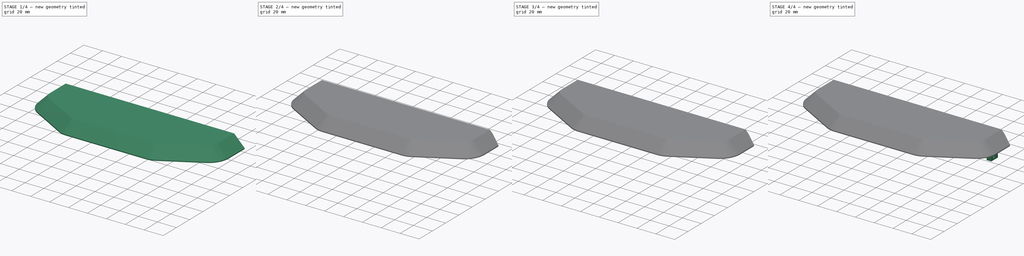
[diagram: build sequence overview — one tinted view per stage of 4, left to right]
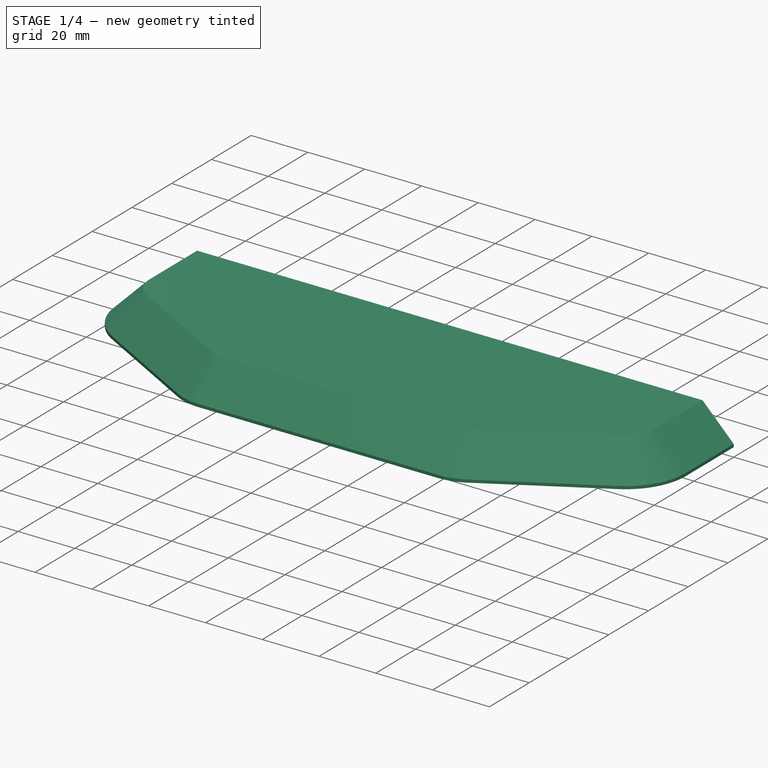
[diagram: stage 1 of 4 — iso view after this stage's code; geometry added in this stage tinted green]
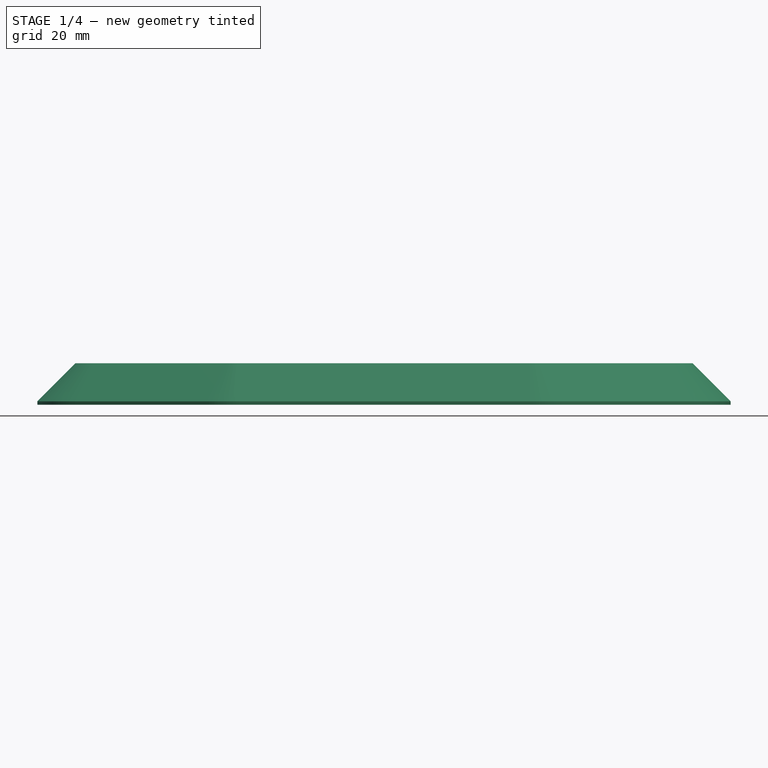
[diagram: stage 1 of 4 — front view after this stage's code; geometry added in this stage tinted green]
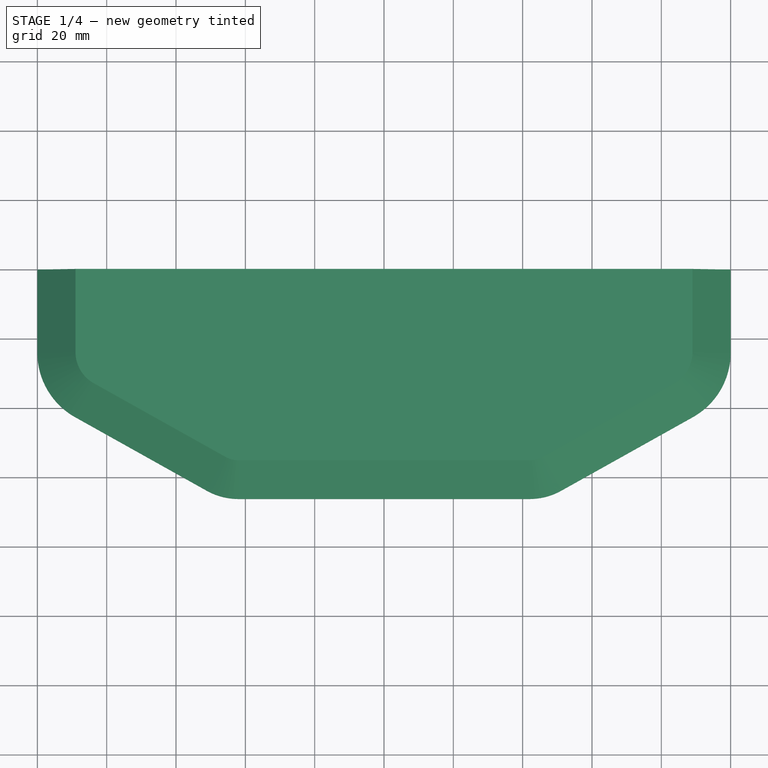
[diagram: stage 1 of 4 — top view after this stage's code; geometry added in this stage tinted green]
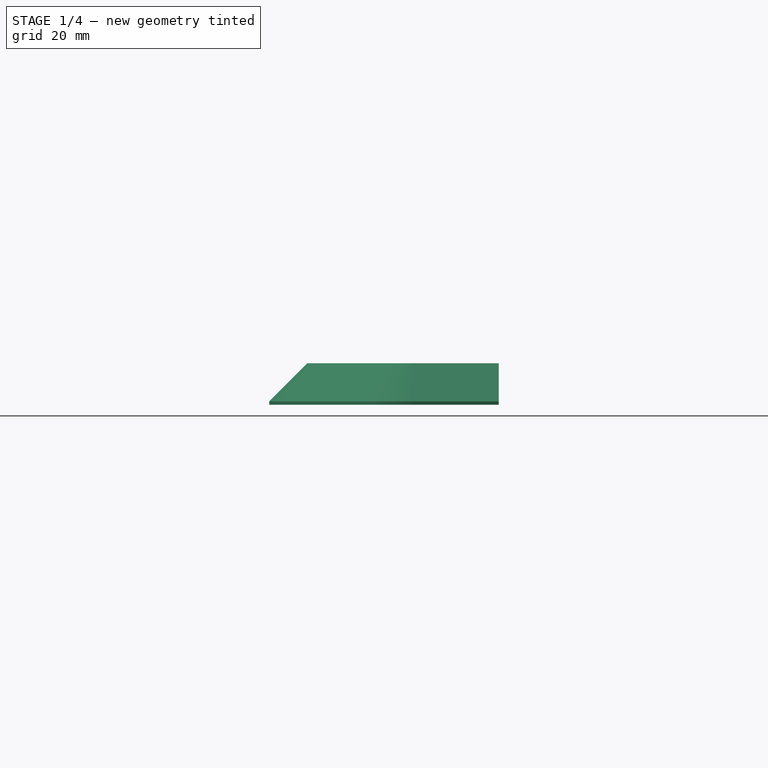
[diagram: stage 1 of 4 — right view after this stage's code; geometry added in this stage tinted green]
FCSTD DOCUMENT  (FreeCAD 0.20R)
Label: T07_front_cover
License: All rights reserved
LicenseURL: http://en.wikipedia.org/wiki/All_rights_reserved
objects: Sketcher::SketchObject×7, PartDesign::Pad×4, PartDesign::Pocket×3, PartDesign::Chamfer×2, PartDesign::Body×1
note: 26 computed .brp shape members not serialized (recipe doc carries the construction recipe); baked Part::Feature solids carry a one-line shape summary decoded from their .brp

FEATURE [Sketcher::SketchObject] Sketch062
  FullyConstrained = true
  MapMode = 5
  sketch-geometry (10):
    g0: LineSegment StartX=100 StartY=0 StartZ=0 EndX=100 EndY=-24 EndZ=0
    g1: LineSegment StartX=42 StartY=-66.2 StartZ=0 EndX=-42 EndY=-66.2 EndZ=0
    g2: LineSegment StartX=-51.25 StartY=-63.75 StartZ=0 EndX=-89.25 EndY=-42.5 EndZ=0
    g3: LineSegment StartX=-100 StartY=-24 StartZ=0 EndX=-100 EndY=0 EndZ=0
    g4: LineSegment StartX=51.25 StartY=-63.75 StartZ=0 EndX=89.25 EndY=-42.5 EndZ=0
    g5: ArcOfCircle CenterX=-78.7064 CenterY=-24 CenterZ=0 NormalX=0 NormalY=0 NormalZ=1 AngleXU=0 Radius=21.2936 StartAngle=3.14159 EndAngle=4.19438
    g6: ArcOfCircle CenterX=-42 CenterY=-47.5133 CenterZ=0 NormalX=0 NormalY=0 NormalZ=1 AngleXU=0 Radius=18.6867 StartAngle=4.19455 EndAngle=4.71239
    g7: ArcOfCircle CenterX=42 CenterY=-47.5133 CenterZ=0 NormalX=0 NormalY=0 NormalZ=1 AngleXU=0 Radius=18.6867 StartAngle=4.71239 EndAngle=5.23023
    g8: ArcOfCircle CenterX=78.7064 CenterY=-24 CenterZ=0 NormalX=0 NormalY=0 NormalZ=1 AngleXU=0 Radius=21.2936 StartAngle=5.2304 EndAngle=6.28319
    g9: LineSegment StartX=-100 StartY=0 StartZ=0 EndX=100 EndY=0 EndZ=0
  constraints (25):
    c: Vertical(g3)
    c: Symmetric(g3,g0,g-2)
    c: Symmetric(g3,g0,g-2)
    c: DistanceX(g3,g0) = 200
    c: DistanceY(g3,g3) = 24
    c: Symmetric(g1,g1,g-2)
    c: DistanceX(g1,g1) = 84
    c: DistanceY(g1,g3) = 66.2
    c: Symmetric(g2,g4,g-2)
    c: Symmetric(g2,g4,g-2)
    c: DistanceX(g2,g4) = 102.5
    c: DistanceX(g2,g4) = 178.5
    c: DistanceY(g2,g3) = 42.5
    c: DistanceY(g2,g3) = 63.75
    c: DistanceY(g3,g-1) = 0
    c: Coincident(g6,g2)
    c: Coincident(g8,g4)
    c: Coincident(g7,g4)
    c: Tangent(g5,g3) = 1.5708
    c: Tangent(g8,g0) = 1.5708
    c: Tangent(g6,g1) = 1.5708
    c: Tangent(g7,g1) = 1.5708
    c: Coincident(g5,g2)
    c: Coincident(g9,g3)
    c: Coincident(g9,g0)
FEATURE [PartDesign::Pad] Pad
  Direction = (0,0,1)
  Length = 12
  Length2 = 10
  Profile = -> Sketch062
  ReferenceAxis = -> Sketch062 [N_Axis]
  Type = 0
FEATURE [Sketcher::SketchObject] Sketch
  FullyConstrained = true
  MapMode = 5
  Placement = pos=(100,0,0) rot=(0.57735,0.57735,0.57735;2.0944rad)
  sketch-geometry (4):
    g0: LineSegment StartX=0 StartY=0 StartZ=0 EndX=0 EndY=9 EndZ=0
    g1: LineSegment StartX=0 StartY=9 StartZ=0 EndX=-6 EndY=-9 EndZ=0
    g2: LineSegment StartX=-6 StartY=-9 StartZ=0 EndX=0 EndY=-9 EndZ=0
    g3: LineSegment StartX=0 StartY=-9 StartZ=0 EndX=0 EndY=0 EndZ=0
  constraints (11):
    c: PointOnObject(g0,g-2)
    c: Coincident(g0,g1)
    c: DistanceX(g1,g-1) = 6
    c: DistanceY(g0,g0) = 9
    c: DistanceY(g1,g-1) = 9
    c: Coincident(g1,g2)
    c: PointOnObject(g2,g-2)
    c: Horizontal(g2)
    c: Coincident(g2,g3)
    c: Coincident(g3,g0)
    c: Coincident(g0,g-1)
FEATURE [PartDesign::Chamfer] Chamfer
  Angle = 45
  Base = -> Pad [Edge10,Edge13,Edge16,Edge19,Edge22,Edge25,Edge28,Edge30,Edge4]
  BaseFeature = -> Pad
  ChamferType = 0
  FlipDirection = false
  Size = 11
  Size2 = 1
  SupportTransform = false
  UseAllEdges = false
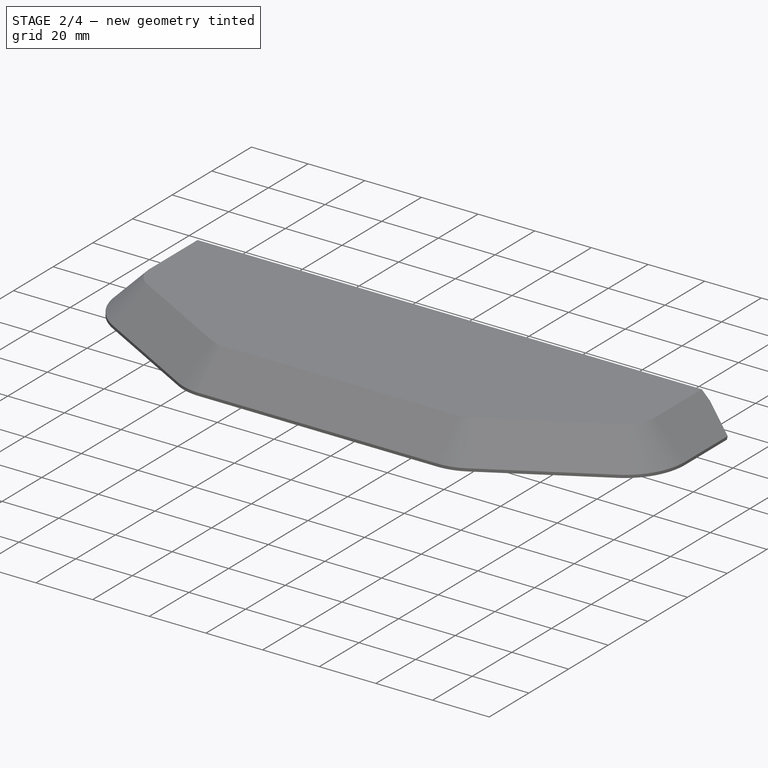
[diagram: stage 2 of 4 — iso view after this stage's code; geometry added in this stage tinted green]
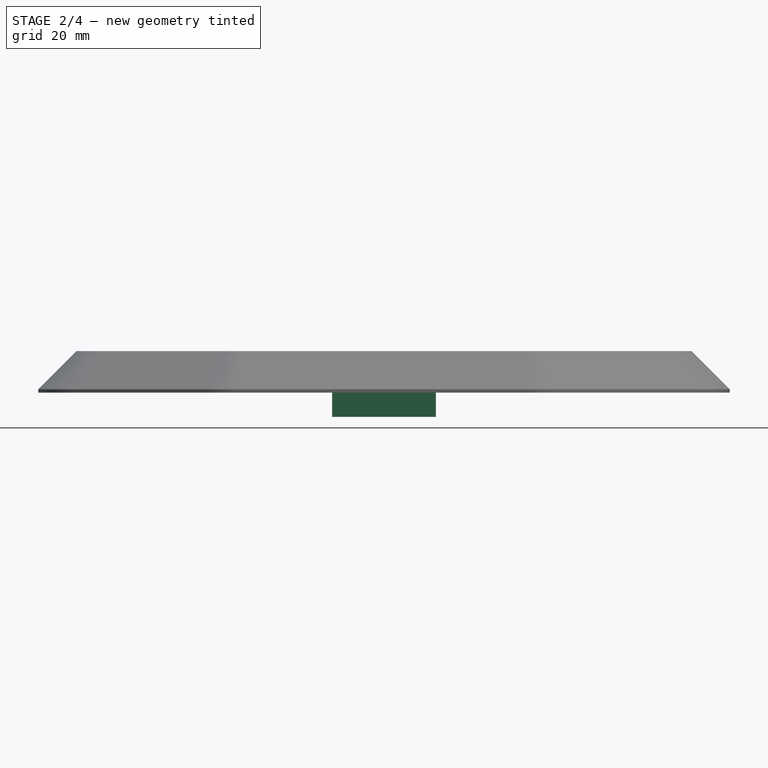
[diagram: stage 2 of 4 — front view after this stage's code; geometry added in this stage tinted green]
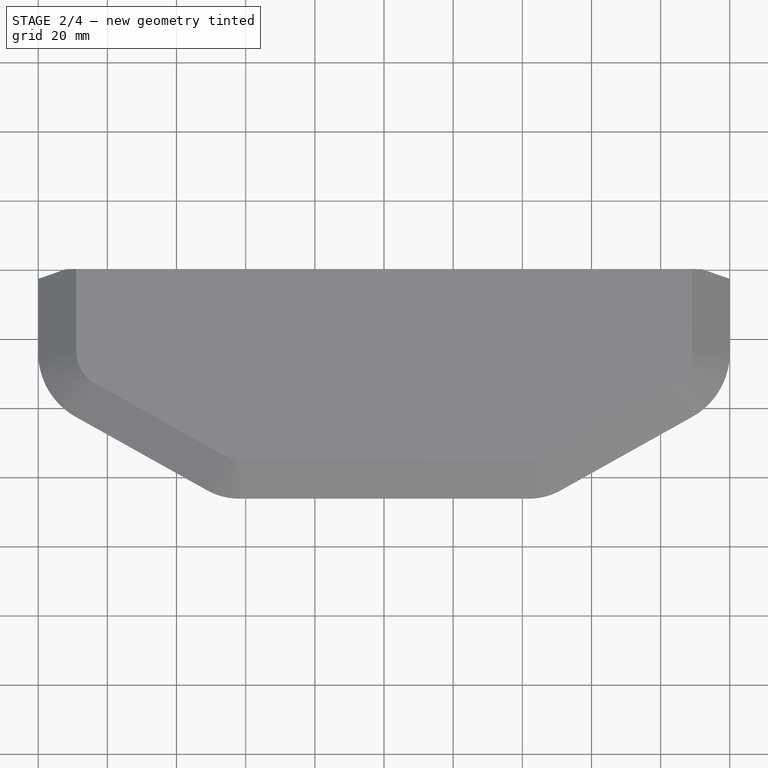
[diagram: stage 2 of 4 — top view after this stage's code; geometry added in this stage tinted green]
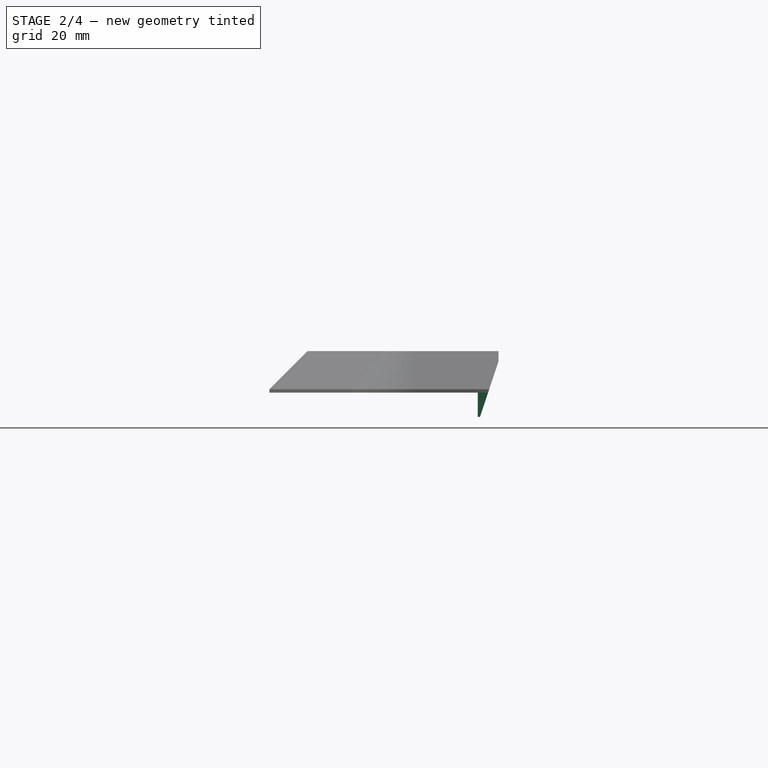
[diagram: stage 2 of 4 — right view after this stage's code; geometry added in this stage tinted green]
FEATURE [Sketcher::SketchObject] Sketch064
  FullyConstrained = true
  MapMode = 5
  Placement = pos=(0,0,0) rot=(1,0,0;3.14159rad)
  Support = -> [Chamfer]
  sketch-geometry (4):
    g0: LineSegment StartX=-15 StartY=6 StartZ=0 EndX=15 EndY=6 EndZ=0
    g1: LineSegment StartX=15 StartY=6 StartZ=0 EndX=15 EndY=3 EndZ=0
    g2: LineSegment StartX=15 StartY=3 StartZ=0 EndX=-15 EndY=3 EndZ=0
    g3: LineSegment StartX=-15 StartY=3 StartZ=0 EndX=-15 EndY=6 EndZ=0
  constraints (11):
    c: Coincident(g0,g1)
    c: Coincident(g1,g2)
    c: Coincident(g2,g3)
    c: Coincident(g3,g0)
    c: Horizontal(g0)
    c: Vertical(g1)
    c: Vertical(g3)
    c: Symmetric(g2,g1,g-2)
    c: DistanceX(g2,g2) = 30
    c: DistanceY(g-1,g2) = 3
    c: DistanceY(g2,g0) = 3
FEATURE [PartDesign::Pad] Pad001
  BaseFeature = -> Chamfer
  Direction = (0,0,-1)
  Length = 7
  Length2 = 10
  Profile = -> Sketch064
  ReferenceAxis = -> Sketch064 [N_Axis]
  Type = 0
FEATURE [PartDesign::Pocket] Pocket
  BaseFeature = -> Pad001
  Direction = (-1,0,0)
  Length = 5
  Length2 = 5
  Profile = -> Sketch
  ReferenceAxis = -> Sketch [N_Axis]
  Type = 1
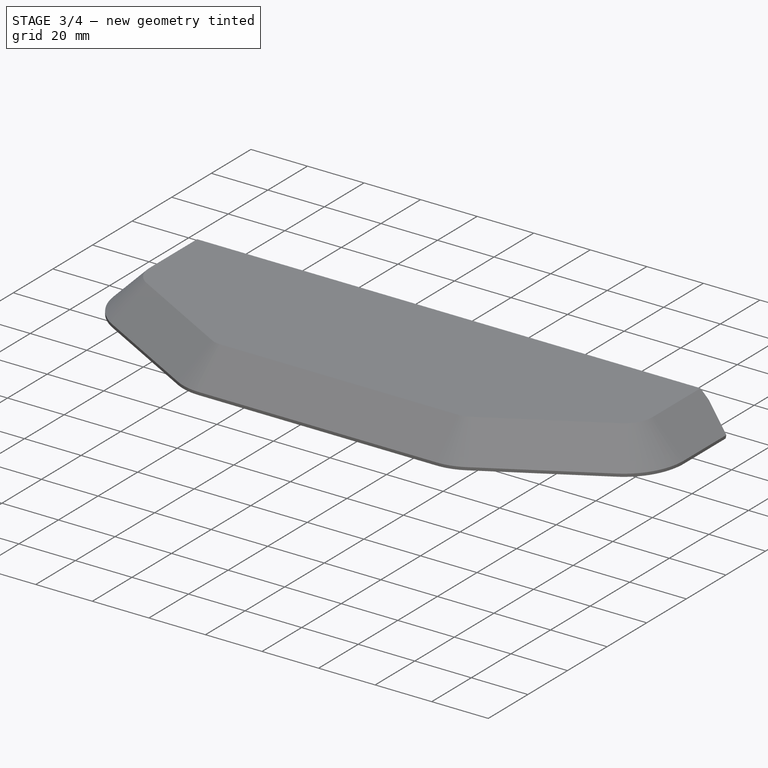
[diagram: stage 3 of 4 — iso view after this stage's code; geometry added in this stage tinted green]
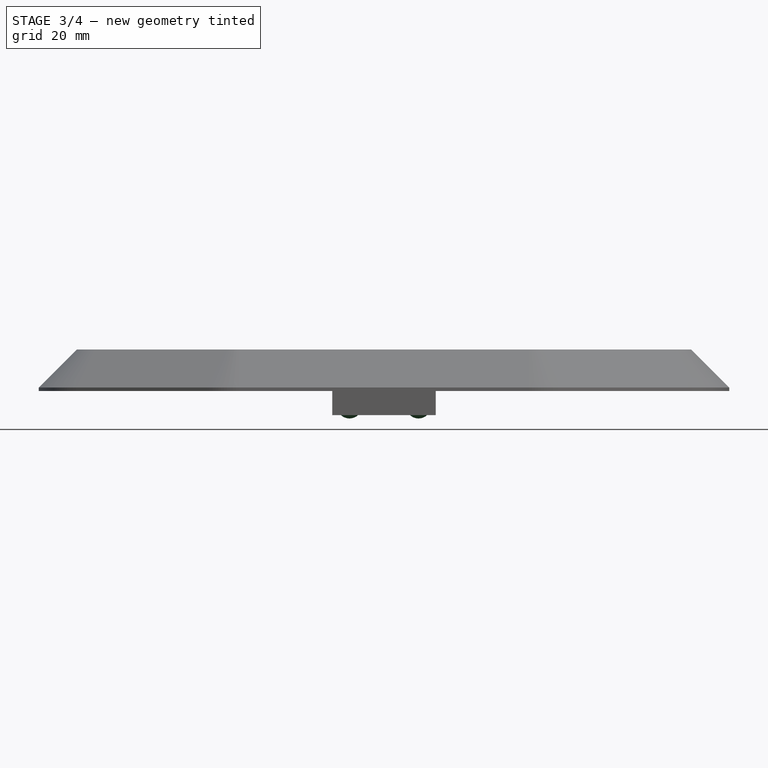
[diagram: stage 3 of 4 — front view after this stage's code; geometry added in this stage tinted green]
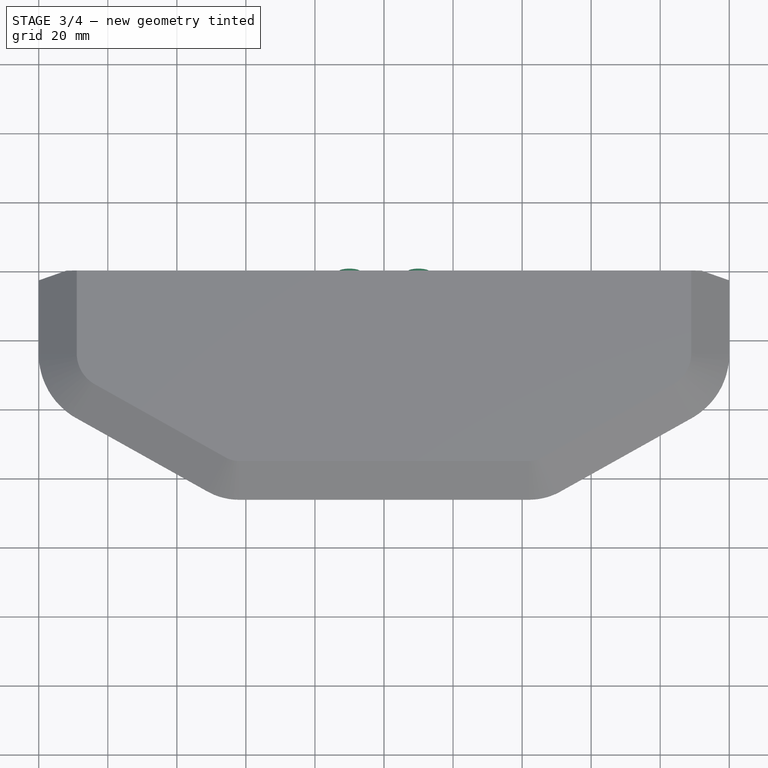
[diagram: stage 3 of 4 — top view after this stage's code; geometry added in this stage tinted green]
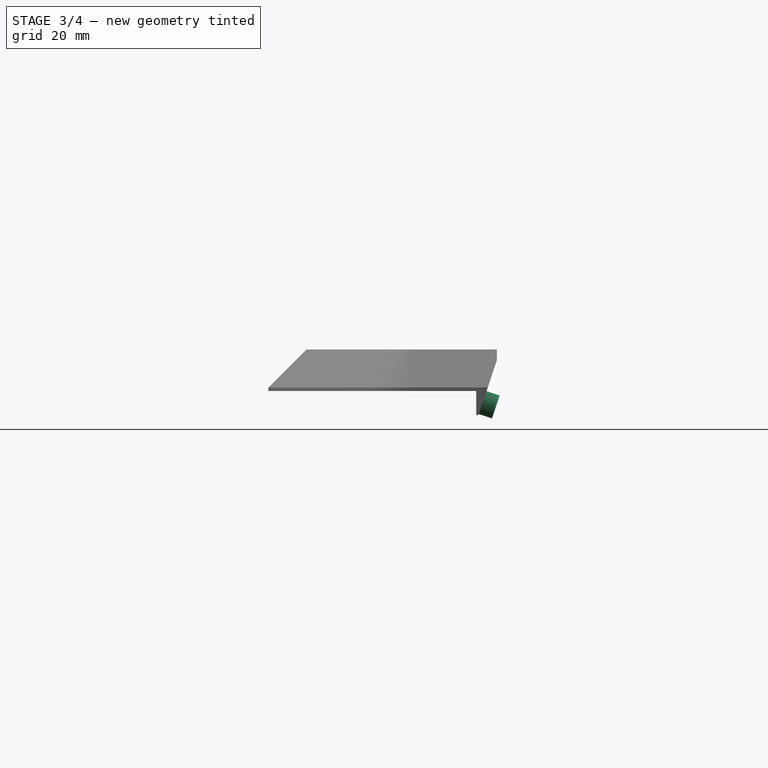
[diagram: stage 3 of 4 — right view after this stage's code; geometry added in this stage tinted green]
FEATURE [Sketcher::SketchObject] Sketch065
  FullyConstrained = true
  MapMode = 5
  Placement = pos=(0,-2.7,0.9) rot=(0,0.811242,0.58471;3.14159rad)
  Support = -> [Pocket]
  sketch-geometry (2):
    g0: Circle CenterX=-10 CenterY=-4.5 CenterZ=0 NormalX=0 NormalY=0 NormalZ=1 AngleXU=0 Radius=3.5
    g1: Circle CenterX=10 CenterY=-4.5 CenterZ=0 NormalX=0 NormalY=0 NormalZ=1 AngleXU=0 Radius=3.5
  constraints (5):
    c: Symmetric(g1,g0,g-2)
    c: Equal(g0,g1)
    c: Diameter(g0) = 7
    c: DistanceX(g0,g1) = 20
    c: DistanceY(g0,g-1) = 4.5
FEATURE [PartDesign::Pad] Pad002
  BaseFeature = -> Pocket
  Direction = (0,0.948683,-0.316228)
  Length = 4
  Length2 = 10
  Profile = -> Sketch065
  ReferenceAxis = -> Sketch065 [N_Axis]
  Type = 0
FEATURE [Sketcher::SketchObject] Sketch063
  FullyConstrained = true
  MapMode = 5
  Placement = pos=(0,0,0) rot=(1,0,0;3.14159rad)
  Support = -> [Pad002]
  sketch-geometry (8):
    g0: LineSegment StartX=90 StartY=26 StartZ=0 EndX=90 EndY=8 EndZ=0
    g1: LineSegment StartX=90 StartY=8 StartZ=0 EndX=-90 EndY=8 EndZ=0
    g2: LineSegment StartX=-90 StartY=8 StartZ=0 EndX=-90 EndY=26 EndZ=0
    g3: LineSegment StartX=-37 StartY=54 StartZ=0 EndX=37 EndY=54 EndZ=0
    g4: LineSegment StartX=-90 StartY=26 StartZ=0 EndX=-44.5272 EndY=52 EndZ=0
    g5: LineSegment StartX=44.5272 StartY=52 StartZ=0 EndX=90 EndY=26 EndZ=0
    g6: ArcOfCircle CenterX=-37 CenterY=38.8352 CenterZ=0 NormalX=0 NormalY=0 NormalZ=1 AngleXU=0 Radius=15.1648 StartAngle=1.5708 EndAngle=2.0902
    g7: ArcOfCircle CenterX=37 CenterY=38.8352 CenterZ=0 NormalX=0 NormalY=0 NormalZ=1 AngleXU=0 Radius=15.1648 StartAngle=1.05139 EndAngle=1.5708
  constraints (19):
    c: Coincident(g0,g1)
    c: Coincident(g1,g2)
    c: Vertical(g2)
    c: Symmetric(g1,g0,g-2)
    c: DistanceX(g1,g1) = 180
    c: DistanceY(g-1,g1) = 8
    c: Symmetric(g3,g3,g-2)
    c: Symmetric(g4,g5,g-2)
    c: Symmetric(g4,g5,g-2)
    c: DistanceX(g3,g3) = 74
    c: DistanceY(g1,g4) = 18
    c: DistanceY(g1,g4) = 44
    c: DistanceY(g1,g3) = 46
    c: Symmetric(g2,g0,g-2)
    c: Coincident(g7,g5)
    c: Tangent(g6,g3) = 1.5708
    c: Tangent(g7,g3) = 1.5708
    c: Tangent(g6,g4) = 1.5708
    c: Coincident(g2,g4)
FEATURE [PartDesign::Pocket] Pocket001
  BaseFeature = -> Pad002
  Direction = (0,0,1)
  Length = 10.1
  Length2 = 5
  Profile = -> Sketch063
  ReferenceAxis = -> Sketch063 [N_Axis]
  Type = 0
FEATURE [PartDesign::Chamfer] Chamfer001
  Angle = 45
  Base = -> Pocket001 [Edge24,Edge25,Edge26,Vertex18,Edge27,Edge20]
  BaseFeature = -> Pocket001
  ChamferType = 0
  FlipDirection = false
  Size = 10
  Size2 = 1
  SupportTransform = false
  UseAllEdges = false
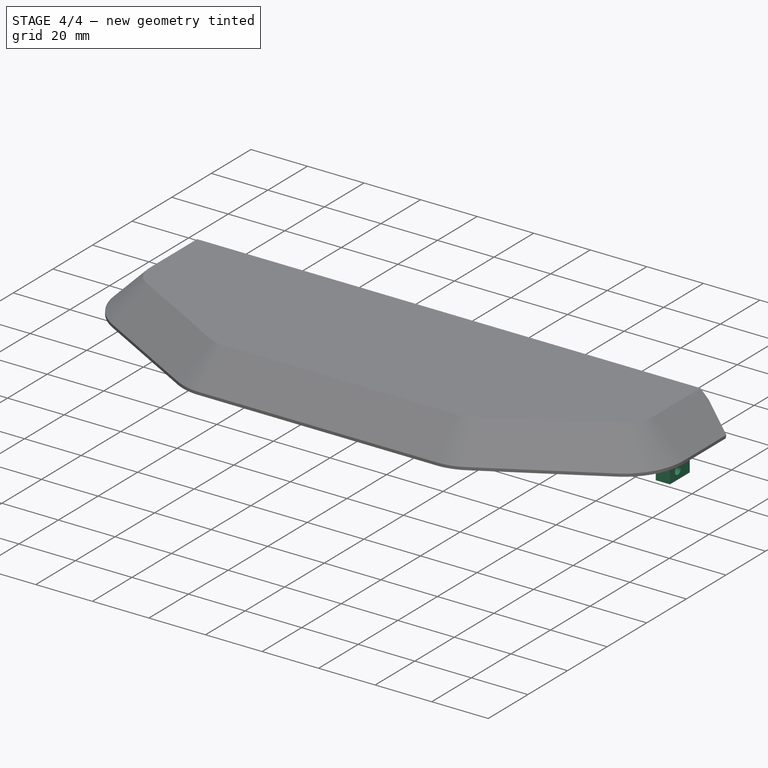
[diagram: stage 4 of 4 — iso view after this stage's code; geometry added in this stage tinted green]
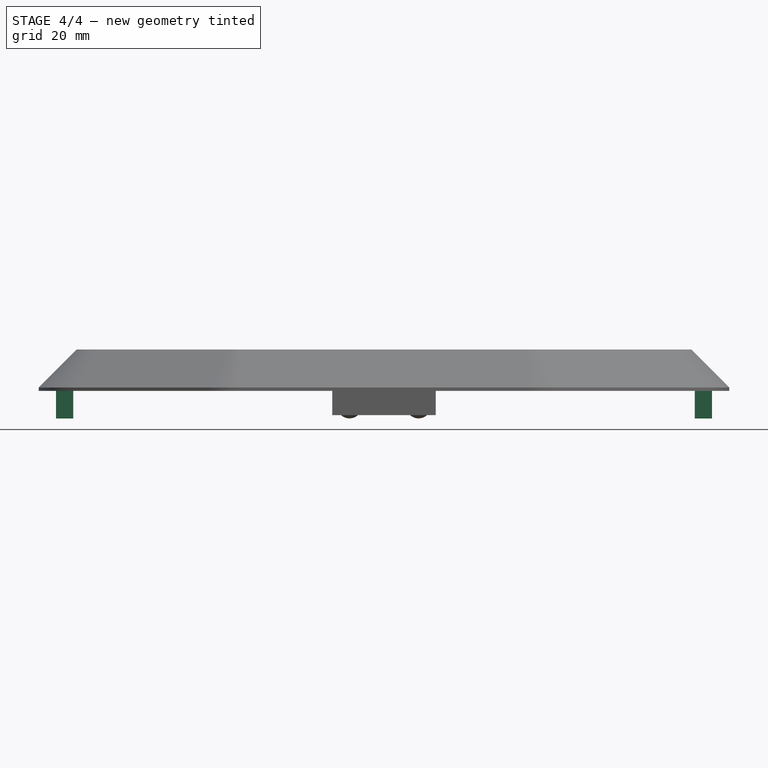
[diagram: stage 4 of 4 — front view after this stage's code; geometry added in this stage tinted green]
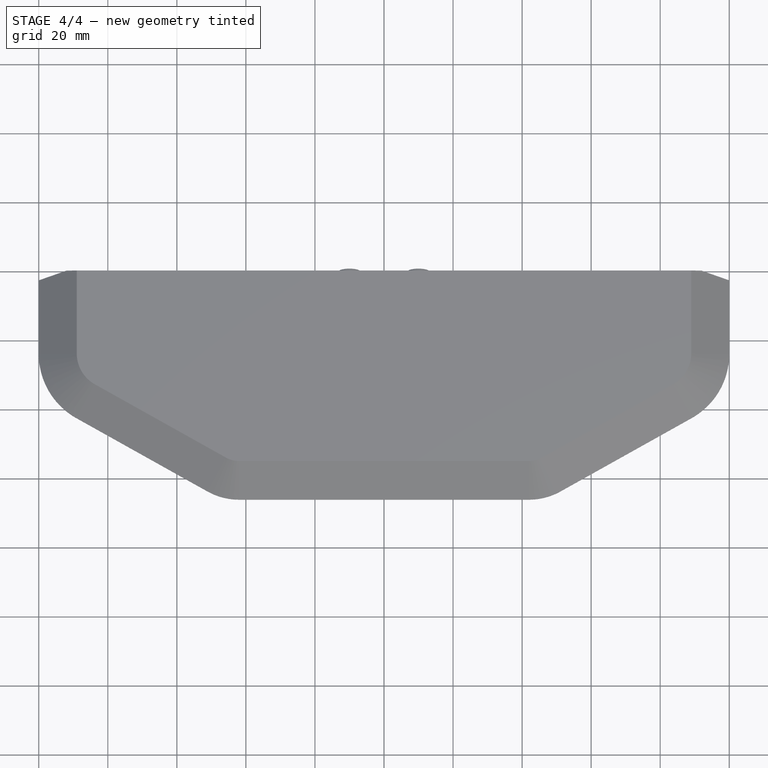
[diagram: stage 4 of 4 — top view after this stage's code; geometry added in this stage tinted green]
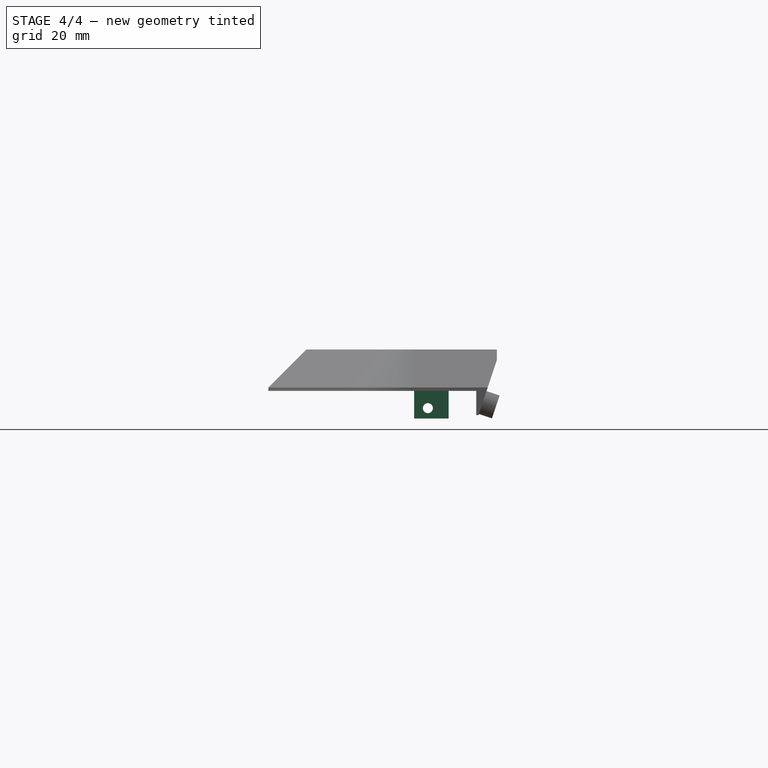
[diagram: stage 4 of 4 — right view after this stage's code; geometry added in this stage tinted green]
FEATURE [Sketcher::SketchObject] Sketch066
  FullyConstrained = true
  MapMode = 5
  Placement = pos=(0,0,0) rot=(1,0,0;3.14159rad)
  Support = -> [Chamfer001]
  sketch-geometry (8):
    g0: LineSegment StartX=-95 StartY=24 StartZ=0 EndX=-90 EndY=24 EndZ=0
    g1: LineSegment StartX=-90 StartY=24 StartZ=0 EndX=-90 EndY=14 EndZ=0
    g2: LineSegment StartX=-90 StartY=14 StartZ=0 EndX=-95 EndY=14 EndZ=0
    g3: LineSegment StartX=-95 StartY=14 StartZ=0 EndX=-95 EndY=24 EndZ=0
    g4: LineSegment StartX=90 StartY=24 StartZ=0 EndX=95 EndY=24 EndZ=0
    g5: LineSegment StartX=95 StartY=24 StartZ=0 EndX=95 EndY=14 EndZ=0
    g6: LineSegment StartX=95 StartY=14 StartZ=0 EndX=90 EndY=14 EndZ=0
    g7: LineSegment StartX=90 StartY=14 StartZ=0 EndX=90 EndY=24 EndZ=0
  constraints (22):
    c: Coincident(g0,g1)
    c: Coincident(g1,g2)
    c: Coincident(g2,g3)
    c: Coincident(g3,g0)
    c: Horizontal(g0)
    c: Horizontal(g2)
    c: Vertical(g1)
    c: Vertical(g3)
    c: Coincident(g4,g5)
    c: Coincident(g5,g6)
    c: Coincident(g6,g7)
    c: Coincident(g7,g4)
    c: Horizontal(g4)
    c: Horizontal(g6)
    c: Vertical(g5)
    c: Vertical(g7)
    c: Symmetric(g5,g2,g-2)
    c: Symmetric(g0,g4,g-2)
    c: DistanceX(g2,g2) = 5
    c: DistanceY(g-1,g1) = 14
    c: DistanceY(g3,g3) = 10
    c: DistanceX(g2,g5) = 190
FEATURE [PartDesign::Pad] Pad003
  BaseFeature = -> Chamfer001
  Direction = (0,0,-1)
  Length = 8
  Length2 = 10
  Profile = -> Sketch066
  ReferenceAxis = -> Sketch066 [N_Axis]
  Type = 0
FEATURE [Sketcher::SketchObject] Sketch067
  FullyConstrained = true
  MapMode = 5
  Placement = pos=(-95,0,0) rot=(0.57735,-0.57735,-0.57735;2.0944rad)
  Support = -> [Pad003]
  sketch-geometry (1):
    g0: Circle CenterX=20 CenterY=-5 CenterZ=0 NormalX=0 NormalY=0 NormalZ=1 AngleXU=0 Radius=1.45
  constraints (3):
    c: Diameter(g0) = 2.9
    c: DistanceX(g-1,g0) = 20
    c: DistanceY(g0,g-1) = 5
FEATURE [PartDesign::Pocket] Pocket002
  BaseFeature = -> Pad003
  Direction = (1,0,0)
  Length = 5
  Length2 = 5
  Profile = -> Sketch067
  ReferenceAxis = -> Sketch067 [N_Axis]
  Type = 1
FEATURE [PartDesign::Body] Body  label="T07_front_cover"
  Group = -> [Sketch062,Pad,Sketch,Sketch063,Chamfer,Sketch064,Pad001,Pocket,Sketch065,Pad002,Pocket001,Chamfer001,Sketch066,Pad003,Sketch067,Pocket002]
  Origin = -> Origin
  Tip = -> Pocket002
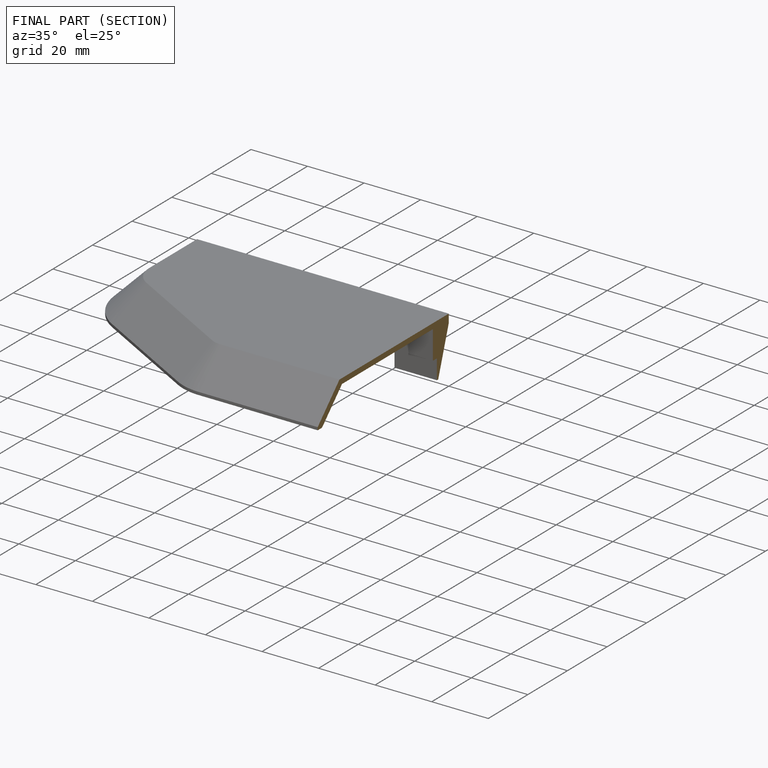
[diagram: finished part — half-section view (interior)]
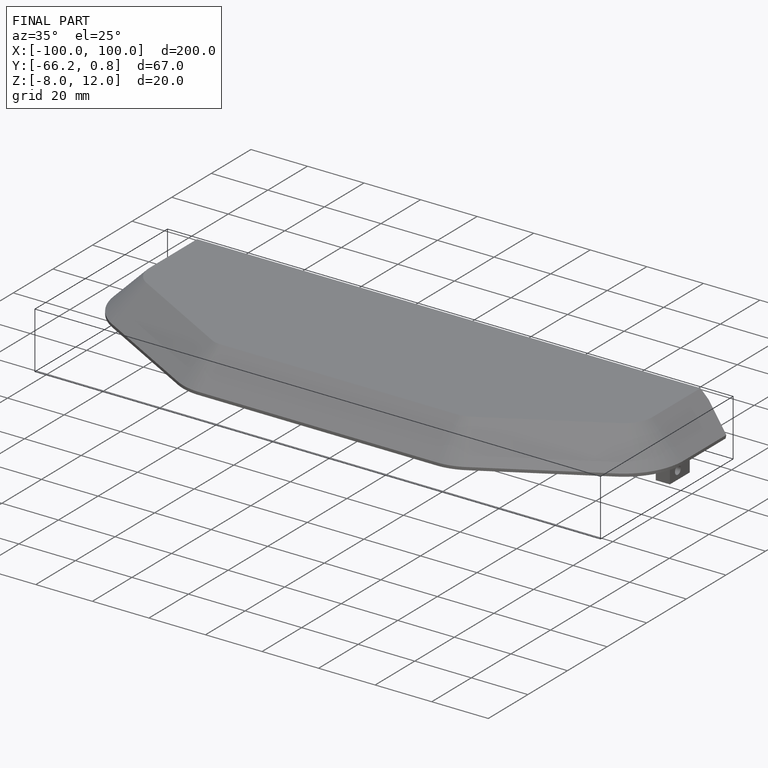
[diagram: finished part — iso view with bounding-box wireframe]
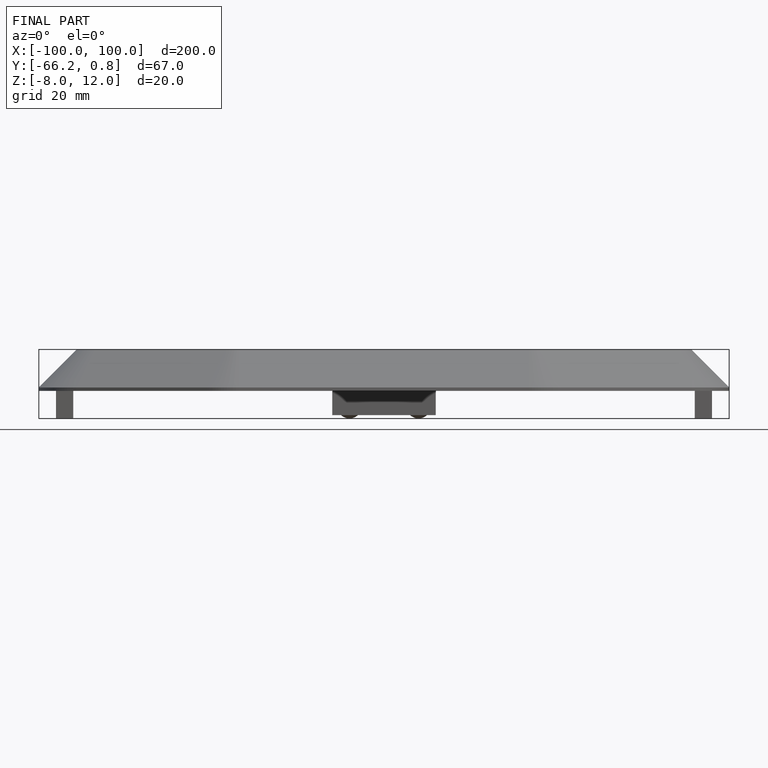
[diagram: finished part — front view with bounding-box wireframe]
